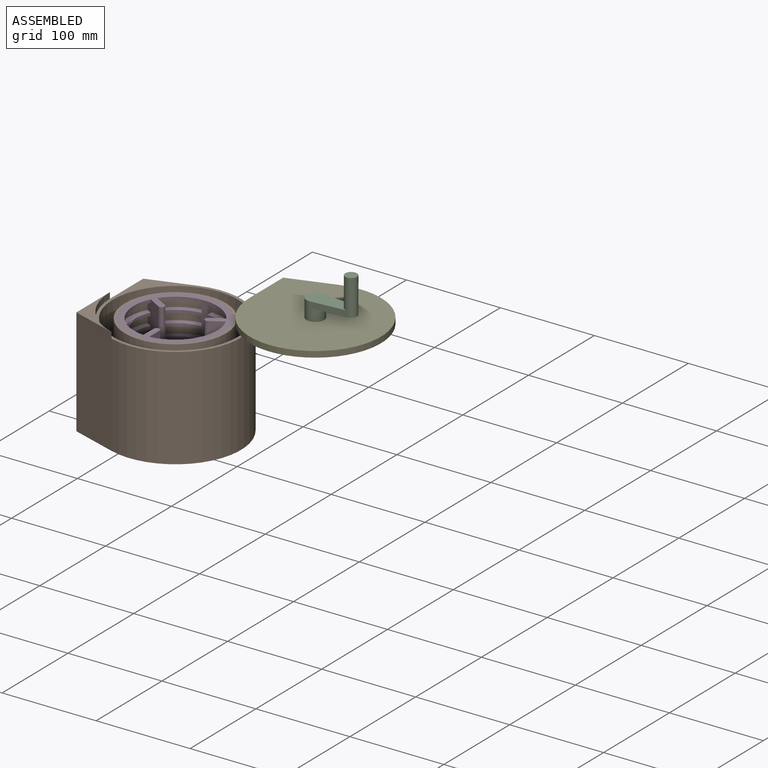
[diagram: assembled view]
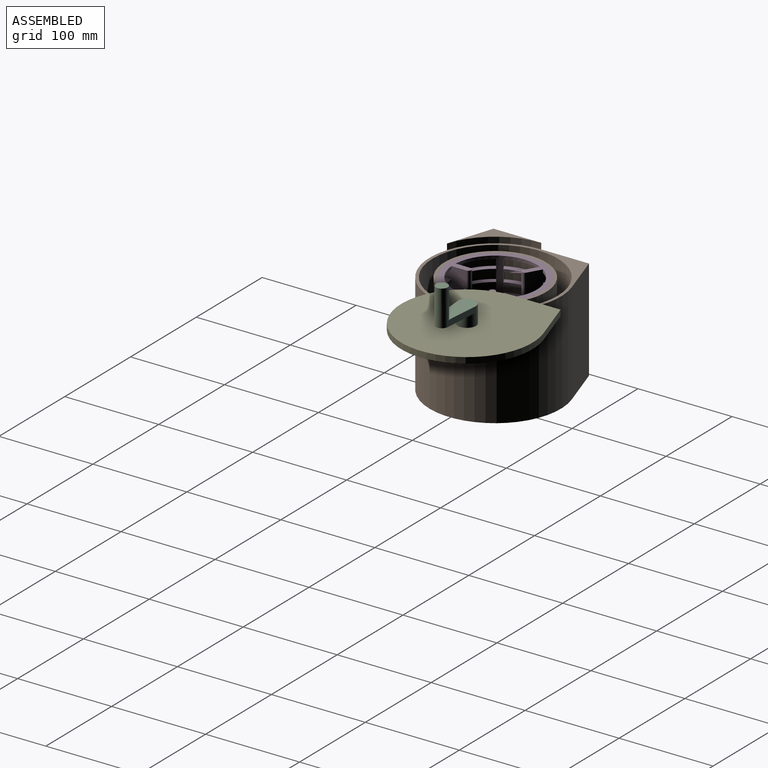
[diagram: assembled view, second angle]
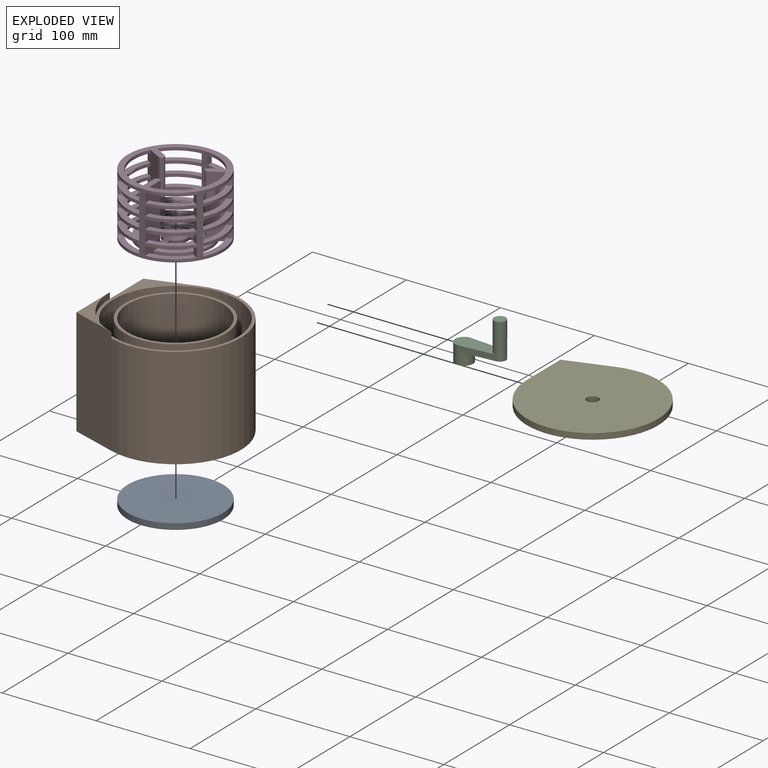
[diagram: exploded view]
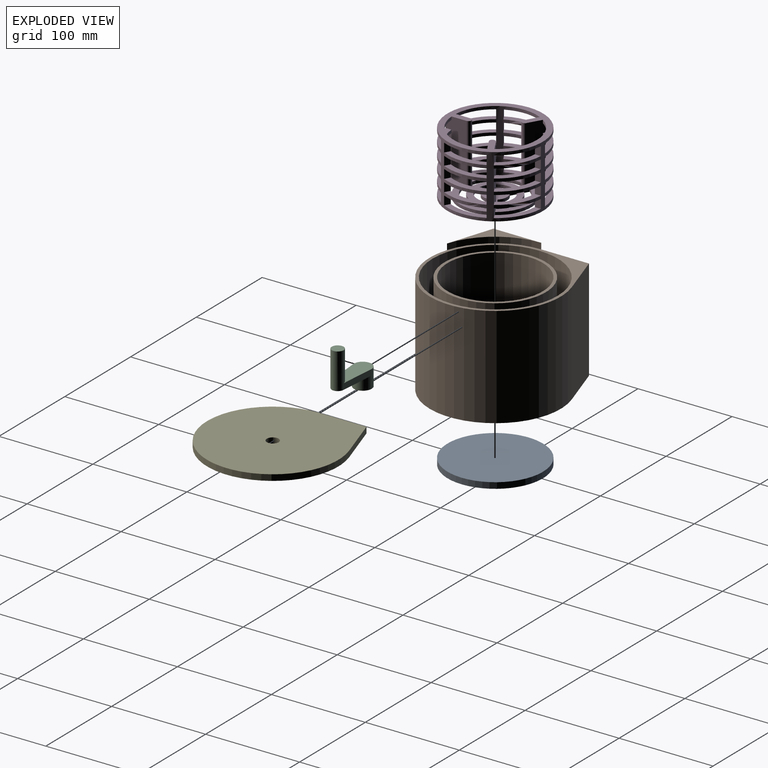
[diagram: exploded view, second angle]
ASSEMBLY  parts=5 mates=3
PART A: 3 faces, bbox 101.6x101.6x6.4 mm
  f0: cylinder r=50.8mm len=101.6mm, axis (0,0,-1), area 2026.8mm2, adj f1,f2
  f1: plane 101.6x101.6mm, normal (0,0,1), area 8107.3mm2, adj f0
  f2: plane 101.6x101.6mm, normal (0,0,-1), area 8107.3mm2, adj f0
PART B: 13 faces, bbox 139.7x139.7x114.3 mm
  f0: plane 139.7x139.7mm, normal (0,0,1), area 1842.2mm2, adj f3,f4,f6,f7,f11
  f1: plane 133.35x133.35mm, normal (0,0,1), area 4813.7mm2, adj f7,f9
  f2: plane 139.7x139.7mm, normal (0,0,-1), area 8181.5mm2, adj f3,f4,f5,f6,f8
  f3: plane 107.95x48.33mm, normal (-0.31,0.95,0), area 5483.9mm2, adj f0,f2,f4,f6
  f4: plane 114.3x101.6mm, normal (-1,0,0), area 11290.3mm2, adj f0,f2,f3,f5,f11,f12
  f5: plane 114.3x48.33mm, normal (-0.31,-0.95,0), area 5806.4mm2, adj f2,f4,f6,f11,f12
  f6: cylinder r=69.85mm len=139.7mm, axis (0,0,-1), area 28411.9mm2, adj f0,f2,f3,f5
  f7: cylinder r=66.67mm len=133.35mm, axis (0,0,-1), area 42563.4mm2, adj f0,f1
  f8: cylinder r=50.8mm len=107.95mm, axis (0,0,-1), area 34456.1mm2, adj f2,f10
  f9: cylinder r=53.98mm len=107.95mm, axis (0,0,-1), area 34456.1mm2, adj f1,f10
  f10: plane 107.95x107.95mm, normal (0,0,1), area 1045.1mm2, adj f8,f9
  f11: cylinder r=69.85mm len=66.45mm, axis (0,0,-1), area 557.8mm2, adj f0,f4,f5,f12
  f12: plane 66.45x48.33mm, normal (0,0,1), area 480.5mm2, adj f4,f5,f11
PART C: 11 faces, bbox 54x19.1x50.8 mm
  f0: cylinder r=6.35mm len=38.1mm, axis (0,0,-1), area 1393.4mm2, adj f1,f2,f3,f5,f6
  f1: plane 12.7x12.7mm, normal (0,0,1), area 126.7mm2, adj f0
  f2: plane 42.87x18.79mm, normal (0,0,-1), area 525.7mm2, adj f0,f3,f5,f7
  f3: plane 38.1x19.05mm, normal (0.08,1,0), area 262.9mm2, adj f0,f2,f4,f6,f7,f9
  f4: cylinder r=9.53mm len=19.05mm, axis (0,0,-1), area 570mm2, adj f3,f5,f6,f9
  f5: plane 38.1x19.05mm, normal (0.08,-1,0), area 262.9mm2, adj f0,f2,f4,f6,f7,f9
  f6: plane 47.63x19.05mm, normal (0,0,1), area 684mm2, adj f0,f3,f4,f5
  f7: cylinder r=9.53mm len=18.79mm, axis (0,0,1), area 339.8mm2, adj f2,f3,f5,f9
  f8: cylinder r=6.35mm len=12.7mm, axis (0,0,1), area 506.7mm2, adj f9,f10
  f9: plane 19.05x19.05mm, normal (0,0,-1), area 158.3mm2, adj f3,f4,f5,f7,f8
  f10: plane 12.7x12.7mm, normal (0,0,-1), area 126.7mm2, adj f8
PART D: 130 faces, bbox 101.6x101.6x66.7 mm
  f0: plane 66.68x22.08mm, normal (-0.5,-0.87,0), area 1350.8mm2, adj f46,f48,f50,f52,f54,f56,f58,f60
  f1: plane 66.68x22.08mm, normal (0.5,0.87,0), area 1350.8mm2, adj f26,f28,f30,f32,f34,f36,f38,f40
  f2: plane 66.68x22.08mm, normal (0.5,-0.87,0), area 1350.8mm2, adj f6,f8,f10,f12,f14,f16,f18,f20
  f3: plane 66.68x25.5mm, normal (-1,0,0), area 1350.8mm2, adj f45,f47,f49,f51,f53,f55,f57,f59
  f4: plane 66.68x22.08mm, normal (-0.5,0.87,0), area 1350.8mm2, adj f25,f27,f29,f31,f33,f35,f37,f39
  f5: plane 39.15x25.78mm, normal (0,0,1), area 276.3mm2, adj f67,f69,f73,f125
  f6: plane 45.2x10.82mm, normal (0,0,1), area 276.3mm2, adj f2,f67,f69,f126
  f7: plane 39.15x25.78mm, normal (0,0,1), area 276.3mm2, adj f67,f69,f73,f124
  f8: plane 45.2x10.82mm, normal (0,0,1), area 276.3mm2, adj f2,f67,f69,f123
  f9: plane 39.15x25.78mm, normal (0,0,-1), area 276.3mm2, adj f67,f69,f73,f125
  f10: plane 45.2x10.82mm, normal (0,0,-1), area 276.3mm2, adj f2,f67,f69,f126
  f11: plane 39.15x25.78mm, normal (0,0,1), area 276.3mm2, adj f67,f69,f73,f122
  f12: plane 45.2x10.82mm, normal (0,0,1), area 276.3mm2, adj f2,f67,f69,f121
  f13: plane 39.15x25.78mm, normal (0,0,-1), area 276.3mm2, adj f67,f69,f73,f124
  f14: plane 45.2x10.82mm, normal (0,0,-1), area 276.3mm2, adj f2,f67,f69,f123
  f15: plane 39.15x25.78mm, normal (0,0,-1), area 276.3mm2, adj f67,f69,f73,f122
  f16: plane 45.2x10.82mm, normal (0,0,-1), area 276.3mm2, adj f2,f67,f69,f121
  f17: plane 39.15x25.78mm, normal (0,0,1), area 276.3mm2, adj f67,f69,f73,f120
  f18: plane 45.2x10.82mm, normal (0,0,1), area 276.3mm2, adj f2,f67,f69,f119
  f19: plane 39.15x25.78mm, normal (0,0,1), area 276.3mm2, adj f67,f69,f73,f118
  f20: plane 45.2x10.82mm, normal (0,0,1), area 276.3mm2, adj f2,f67,f69,f117
  f21: plane 39.15x25.78mm, normal (0,0,-1), area 276.3mm2, adj f67,f69,f73,f120
  f22: plane 45.2x10.82mm, normal (0,0,-1), area 276.3mm2, adj f2,f67,f69,f119
  f23: plane 39.15x25.78mm, normal (0,0,-1), area 276.3mm2, adj f67,f69,f73,f118
  f24: plane 45.2x10.82mm, normal (0,0,-1), area 276.3mm2, adj f2,f67,f69,f117
  f25: plane 39.15x25.78mm, normal (0,0,1), area 276.3mm2, adj f4,f67,f90,f115
  f26: plane 39.15x25.78mm, normal (0,0,1), area 276.3mm2, adj f1,f67,f90,f116
  f27: plane 39.15x25.78mm, normal (0,0,1), area 276.3mm2, adj f4,f67,f90,f114
  f28: plane 39.15x25.78mm, normal (0,0,1), area 276.3mm2, adj f1,f67,f90,f113
  f29: plane 39.15x25.78mm, normal (0,0,-1), area 276.3mm2, adj f4,f67,f90,f115
  f30: plane 39.15x25.78mm, normal (0,0,-1), area 276.3mm2, adj f1,f67,f90,f116
  f31: plane 39.15x25.78mm, normal (0,0,1), area 276.3mm2, adj f4,f67,f90,f112
  f32: plane 39.15x25.78mm, normal (0,0,1), area 276.3mm2, adj f1,f67,f90,f111
  f33: plane 39.15x25.78mm, normal (0,0,-1), area 276.3mm2, adj f4,f67,f90,f114
  f34: plane 39.15x25.78mm, normal (0,0,-1), area 276.3mm2, adj f1,f67,f90,f113
  f35: plane 39.15x25.78mm, normal (0,0,-1), area 276.3mm2, adj f4,f67,f90,f112
  f36: plane 39.15x25.78mm, normal (0,0,-1), area 276.3mm2, adj f1,f67,f90,f111
  f37: plane 39.15x25.78mm, normal (0,0,1), area 276.3mm2, adj f4,f67,f90,f110
  f38: plane 39.15x25.78mm, normal (0,0,1), area 276.3mm2, adj f1,f67,f90,f109
  f39: plane 39.15x25.78mm, normal (0,0,1), area 276.3mm2, adj f4,f67,f90,f108
  f40: plane 39.15x25.78mm, normal (0,0,1), area 276.3mm2, adj f1,f67,f90,f107
  f41: plane 39.15x25.78mm, normal (0,0,-1), area 276.3mm2, adj f4,f67,f90,f110
  f42: plane 39.15x25.78mm, normal (0,0,-1), area 276.3mm2, adj f1,f67,f90,f109
  f43: plane 39.15x25.78mm, normal (0,0,-1), area 276.3mm2, adj f4,f67,f90,f108
  f44: plane 39.15x25.78mm, normal (0,0,-1), area 276.3mm2, adj f1,f67,f90,f107
  f45: plane 39.15x25.78mm, normal (0,0,1), area 276.3mm2, adj f3,f67,f95,f105
  f46: plane 45.2x10.82mm, normal (0,0,1), area 276.3mm2, adj f0,f67,f95,f106
  f47: plane 39.15x25.78mm, normal (0,0,-1), area 276.3mm2, adj f3,f67,f95,f103
  f48: plane 45.2x10.82mm, normal (0,0,-1), area 276.3mm2, adj f0,f67,f95,f104
  f49: plane 39.15x25.78mm, normal (0,0,1), area 276.3mm2, adj f3,f67,f95,f101
  f50: plane 45.2x10.82mm, normal (0,0,1), area 276.3mm2, adj f0,f67,f95,f102
  f51: plane 39.15x25.78mm, normal (0,0,-1), area 276.3mm2, adj f3,f67,f95,f105
  f52: plane 45.2x10.82mm, normal (0,0,-1), area 276.3mm2, adj f0,f67,f95,f106
  f53: plane 39.15x25.78mm, normal (0,0,1), area 276.3mm2, adj f3,f67,f95,f103
  f54: plane 45.2x10.82mm, normal (0,0,1), area 276.3mm2, adj f0,f67,f95,f104
  f55: plane 39.15x25.78mm, normal (0,0,-1), area 276.3mm2, adj f3,f67,f95,f101
  f56: plane 45.2x10.82mm, normal (0,0,-1), area 276.3mm2, adj f0,f67,f95,f102
  f57: plane 39.15x25.78mm, normal (0,0,1), area 276.3mm2, adj f3,f67,f95,f99
  f58: plane 45.2x10.82mm, normal (0,0,1), area 276.3mm2, adj f0,f67,f95,f100
  f59: plane 39.15x25.78mm, normal (0,0,1), area 276.3mm2, adj f3,f67,f95,f97
  f60: plane 45.2x10.82mm, normal (0,0,1), area 276.3mm2, adj f0,f67,f95,f98
  f61: plane 39.15x25.78mm, normal (0,0,-1), area 276.3mm2, adj f3,f67,f95,f99
  f62: plane 45.2x10.82mm, normal (0,0,-1), area 276.3mm2, adj f0,f67,f95,f100
  f63: plane 39.15x25.78mm, normal (0,0,-1), area 276.3mm2, adj f3,f67,f95,f97
  f64: plane 45.2x10.82mm, normal (0,0,-1), area 276.3mm2, adj f0,f67,f95,f98
  f65: plane 62.59x19.56mm, normal (0,0,1), area 424.1mm2, adj f1,f4,f89,f91
  f66: plane 54.2x34.93mm, normal (0,0,1), area 424.1mm2, adj f2,f70,f71,f73
  f67: cylinder r=50.8mm len=101.6mm, axis (0,0,1), area 7896.2mm2, adj f0,f1,f2,f3,f4,f5,f6,f7
  f68: plane 101.6x101.6mm, normal (0,0,-1), area 5051.2mm2, adj f0,f1,f2,f3,f4,f67,f69,f70
  f69: cylinder r=44.45mm len=66.68mm, axis (0,0,-1), area 1955.1mm2, adj f2,f5,f6,f7,f8,f9,f10,f11
  f70: cylinder r=38.1mm len=54.2mm, axis (0,0,-1), area 233.2mm2, adj f2,f66,f68,f73
  f71: cylinder r=31.75mm len=44.64mm, axis (0,0,-1), area 190.9mm2, adj f2,f66,f68,f73
  f72: cylinder r=25.4mm len=35.05mm, axis (0,0,-1), area 148.7mm2, adj f2,f68,f73,f88
  f73: plane 66.68x25.5mm, normal (1,0,0), area 1350.8mm2, adj f5,f7,f9,f11,f13,f15,f17,f19
  f74: cylinder r=25.4mm len=35.05mm, axis (0,0,-1), area 148.7mm2, adj f0,f3,f68,f88
  f75: cylinder r=25.4mm len=40.47mm, axis (0,0,-1), area 148.7mm2, adj f1,f4,f68,f88
  f76: plane 5.62x3.24mm, normal (0.5,0.87,0), area 20.6mm2, adj f68,f77,f79,f88
  f77: cylinder r=12.7mm len=18.12mm, axis (0,0,-1), area 64.1mm2, adj f68,f76,f78,f88
  f78: plane 5.62x3.24mm, normal (-0.5,0.87,0), area 20.6mm2, adj f68,f77,f79,f88
  f79: cylinder r=19.05mm len=29.36mm, axis (0,0,-1), area 106.4mm2, adj f68,f76,f78,f88
  f80: plane 6.49x3.18mm, normal (-1,0,0), area 20.6mm2, adj f68,f81,f83,f88
  f81: cylinder r=12.7mm len=15.7mm, axis (0,0,-1), area 64.1mm2, adj f68,f80,f82,f88
  f82: plane 5.62x3.24mm, normal (-0.5,-0.87,0), area 20.6mm2, adj f68,f81,f83,f88
  f83: cylinder r=19.05mm len=25.43mm, axis (0,0,-1), area 106.4mm2, adj f68,f80,f82,f88
  f84: cylinder r=12.7mm len=15.7mm, axis (0,0,-1), area 64.1mm2, adj f68,f85,f87,f88
  f85: plane 6.49x3.18mm, normal (1,0,0), area 20.6mm2, adj f68,f84,f86,f88
  f86: cylinder r=19.05mm len=25.43mm, axis (0,0,-1), area 106.4mm2, adj f68,f85,f87,f88
  f87: plane 5.62x3.24mm, normal (0.5,-0.87,0), area 20.6mm2, adj f68,f84,f86,f88
  f88: plane 53.88x52.5mm, normal (0,0,1), area 1527.6mm2, adj f0,f1,f2,f3,f4,f72,f73,f74
  f89: cylinder r=38.1mm len=62.59mm, axis (0,0,-1), area 233.2mm2, adj f1,f4,f65,f68
  f90: cylinder r=44.45mm len=73.62mm, axis (0,0,-1), area 1955.1mm2, adj f1,f4,f25,f26,f27,f28,f29,f30
  f91: cylinder r=31.75mm len=51.54mm, axis (0,0,-1), area 190.9mm2, adj f1,f4,f65,f68
  f92: plane 54.2x34.93mm, normal (0,0,1), area 424.1mm2, adj f0,f3,f93,f94
  f93: cylinder r=38.1mm len=54.2mm, axis (0,0,-1), area 233.2mm2, adj f0,f3,f68,f92
  f94: cylinder r=31.75mm len=44.64mm, axis (0,0,-1), area 190.9mm2, adj f0,f3,f68,f92
  f95: cylinder r=44.45mm len=66.68mm, axis (0,0,-1), area 1955.1mm2, adj f0,f3,f45,f46,f47,f48,f49,f50
  f96: plane 101.6x101.6mm, normal (0,0,1), area 2251.2mm2, adj f0,f1,f2,f3,f4,f67,f69,f73
  f97: plane 9.53x5.51mm, normal (0.5,-0.87,0), area 60.6mm2, adj f59,f63,f67,f95
  f98: plane 9.53x5.51mm, normal (-0.5,0.87,0), area 60.6mm2, adj f60,f64,f67,f95
  f99: plane 9.53x5.51mm, normal (0.5,-0.87,0), area 60.6mm2, adj f57,f61,f67,f95
  f100: plane 9.53x5.51mm, normal (-0.5,0.87,0), area 60.6mm2, adj f58,f62,f67,f95
  f101: plane 9.53x5.51mm, normal (0.5,-0.87,0), area 60.6mm2, adj f49,f55,f67,f95
  f102: plane 9.53x5.51mm, normal (-0.5,0.87,0), area 60.6mm2, adj f50,f56,f67,f95
  f103: plane 9.53x5.51mm, normal (0.5,-0.87,0), area 60.6mm2, adj f47,f53,f67,f95
  f104: plane 9.53x5.51mm, normal (-0.5,0.87,0), area 60.6mm2, adj f48,f54,f67,f95
  f105: plane 9.53x5.51mm, normal (0.5,-0.87,0), area 60.6mm2, adj f45,f51,f67,f95
  f106: plane 9.53x5.51mm, normal (-0.5,0.87,0), area 60.6mm2, adj f46,f52,f67,f95
  f107: plane 9.53x6.36mm, normal (-1,0,0), area 60.6mm2, adj f40,f44,f67,f90
  f108: plane 9.53x6.36mm, normal (1,0,0), area 60.6mm2, adj f39,f43,f67,f90
  f109: plane 9.53x6.36mm, normal (-1,0,0), area 60.6mm2, adj f38,f42,f67,f90
  f110: plane 9.53x6.36mm, normal (1,0,0), area 60.6mm2, adj f37,f41,f67,f90
  f111: plane 9.53x6.36mm, normal (-1,0,0), area 60.6mm2, adj f32,f36,f67,f90
  f112: plane 9.53x6.36mm, normal (1,0,0), area 60.6mm2, adj f31,f35,f67,f90
  f113: plane 9.53x6.36mm, normal (-1,0,0), area 60.6mm2, adj f28,f34,f67,f90
  f114: plane 9.53x6.36mm, normal (1,0,0), area 60.6mm2, adj f27,f33,f67,f90
  f115: plane 9.53x6.36mm, normal (1,0,0), area 60.6mm2, adj f25,f29,f67,f90
  f116: plane 9.53x6.36mm, normal (-1,0,0), area 60.6mm2, adj f26,f30,f67,f90
  f117: plane 9.53x5.51mm, normal (0.5,0.87,0), area 60.6mm2, adj f20,f24,f67,f69
  f118: plane 9.53x5.51mm, normal (-0.5,-0.87,0), area 60.6mm2, adj f19,f23,f67,f69
  f119: plane 9.53x5.51mm, normal (0.5,0.87,0), area 60.6mm2, adj f18,f22,f67,f69
  f120: plane 9.53x5.51mm, normal (-0.5,-0.87,0), area 60.6mm2, adj f17,f21,f67,f69
  f121: plane 9.53x5.51mm, normal (0.5,0.87,0), area 60.6mm2, adj f12,f16,f67,f69
  f122: plane 9.53x5.51mm, normal (-0.5,-0.87,0), area 60.6mm2, adj f11,f15,f67,f69
  f123: plane 9.53x5.51mm, normal (0.5,0.87,0), area 60.6mm2, adj f8,f14,f67,f69
  f124: plane 9.53x5.51mm, normal (-0.5,-0.87,0), area 60.6mm2, adj f7,f13,f67,f69
  f125: plane 9.53x5.51mm, normal (-0.5,-0.87,0), area 60.6mm2, adj f5,f9,f67,f69
  f126: plane 9.53x5.51mm, normal (0.5,0.87,0), area 60.6mm2, adj f6,f10,f67,f69
  f127: cylinder r=3.17mm len=63.5mm, axis (0,0,-1), area 633.4mm2, adj f3,f73,f88,f96
  f128: cylinder r=3.17mm len=63.5mm, axis (0,0,1), area 633.4mm2, adj f2,f4,f88,f96
  f129: cylinder r=3.17mm len=63.5mm, axis (0,0,-1), area 633.4mm2, adj f0,f1,f88,f96
PART E: 6 faces, bbox 139.7x139.7x6.4 mm
  f0: plane 50.8x6.35mm, normal (-1,0,0), area 322.6mm2, adj f1,f2,f3,f4
  f1: cylinder r=69.85mm len=139.7mm, axis (0,0,-1), area 2229.1mm2, adj f0,f2,f3,f4
  f2: plane 48.33x15.65mm, normal (-0.31,0.95,0), area 322.6mm2, adj f0,f1,f3,f4
  f3: plane 139.7x139.7mm, normal (0,0,1), area 15681.7mm2, adj f0,f1,f2,f5
  f4: plane 139.7x139.7mm, normal (0,0,-1), area 15681.7mm2, adj f0,f1,f2,f5
  f5: cylinder r=6.35mm len=12.7mm, axis (0,0,1), area 253.4mm2, adj f3,f4
PLACE A t=(8.49,94.14,-51.33)mm
PLACE B t=(8.49,94.14,-51.33)mm
PLACE C t=(122.56,143.85,81.81)mm
PLACE D t=(8.49,94.14,110.59)mm
PLACE E t=(122.56,143.85,-45.19)mm
MATE fastened B.f8 <-> A.f0  axis (0,0,-1) through (8.49,94.14,-51.33)mm
MATE fastened E.f1 <-> C.f4  axis (0,0,1) through (122.56,143.85,69.11)mm
MATE fastened B.f8 <-> D.f67  axis (0,0,-1) through (8.49,94.14,56.62)mm
